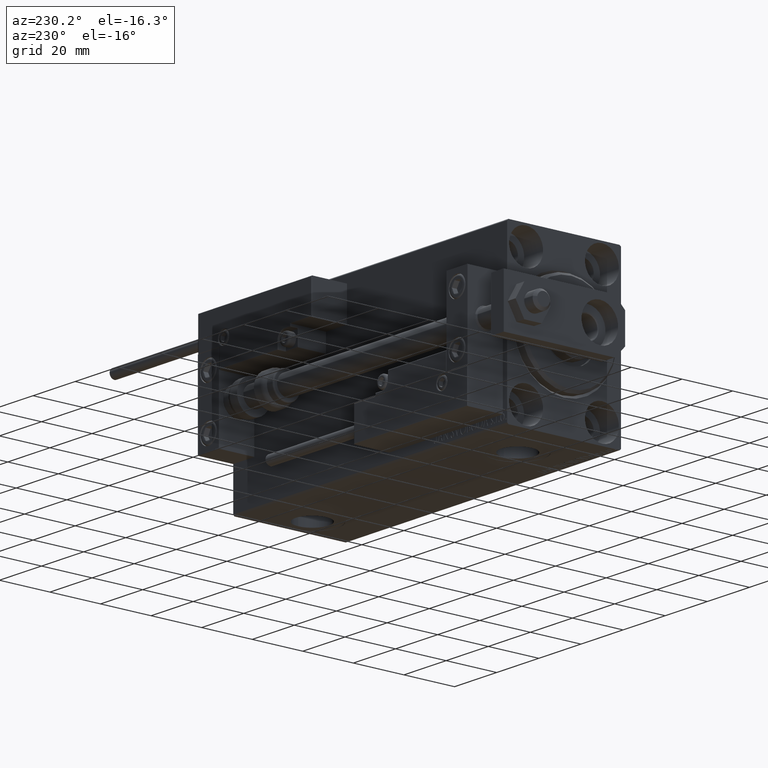
[diagram: clean part render]
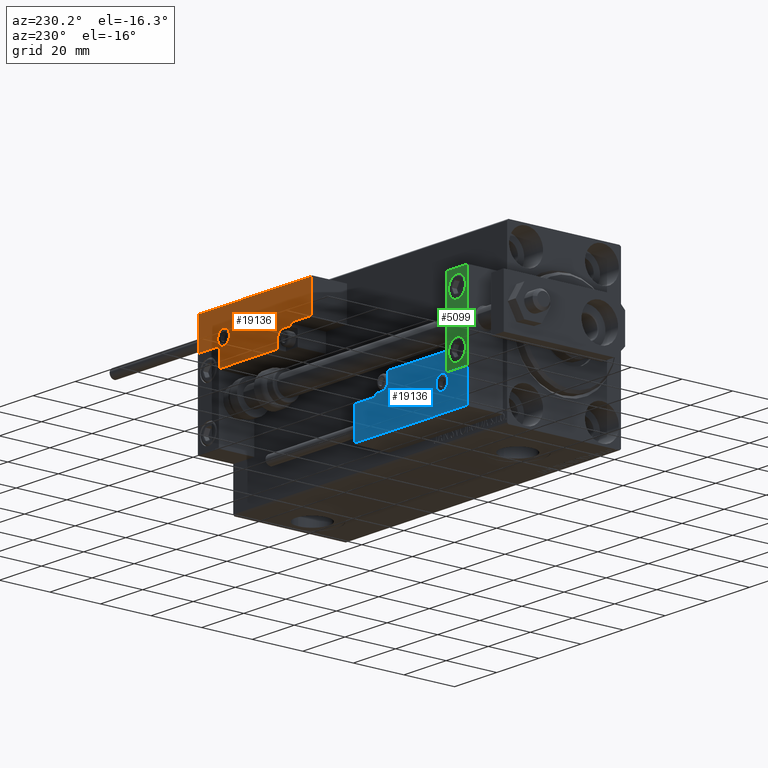
[diagram: same view with three faces highlighted in distinct colors, each labeled with its STEP entity id]
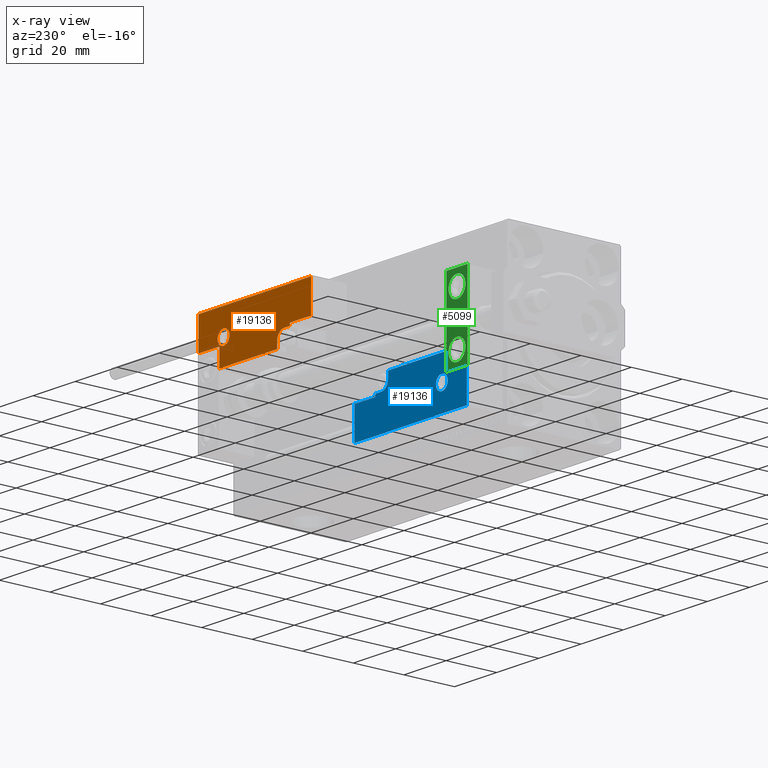
[diagram: x-ray of the same camera — body ghosted, the three highlighted faces saturated]
A machine part, auxiliary view with three faces highlighted in distinct colors.
The next image is the same camera in x-ray (body ghosted, the three faces saturated) — at least one of them is partly hidden behind the body in this view.
Their STEP definitions:

[orange] entity #19136 — the highlighted planar face has unit normal (0, 1, -0).
#374 = ORIENTED_EDGE ( 'NONE', *, *, #3781, .T. ) ;
#768 = DIRECTION ( 'NONE',  ( 1.000000000000000000, -1.734723475976815230E-16, 0.000000000000000000 ) ) ;
#1174 = VECTOR ( 'NONE', #1322, 1000.000000000000000 ) ;
#1322 = DIRECTION ( 'NONE',  ( -1.000000000000000000, 6.424901762877063495E-17, -0.000000000000000000 ) ) ;
#1591 = LINE ( 'NONE', #17380, #13882 ) ;
#2923 = ORIENTED_EDGE ( 'NONE', *, *, #23443, .T. ) ;
#3162 = CARTESIAN_POINT ( 'NONE',  ( 13.99999999999999822, 6.300000000000001599, 14.00000000000000000 ) ) ;
#3373 = VECTOR ( 'NONE', #13943, 1000.000000000000000 ) ;
#3447 = VECTOR ( 'NONE', #768, 1000.000000000000000 ) ;
#3659 = ORIENTED_EDGE ( 'NONE', *, *, #39537, .T. ) ;
#3781 = EDGE_CURVE ( 'NONE', #29993, #34466, #21312, .T. ) ;
#3897 = CARTESIAN_POINT ( 'NONE',  ( 16.69999999999999929, 7.000000000000009770, 14.00000000000000000 ) ) ;
#3934 = DIRECTION ( 'NONE',  ( -0.000000000000000000, 1.000000000000000000, -0.000000000000000000 ) ) ;
#4930 = VECTOR ( 'NONE', #10182, 1000.000000000000000 ) ;
#6455 = EDGE_CURVE ( 'NONE', #34466, #29993, #40797, .T. ) ;
#7992 = CARTESIAN_POINT ( 'NONE',  ( 10.69999999999999929, 3.000000000000003109, 14.00000000000000000 ) ) ;
#8891 = FACE_BOUND ( 'NONE', #49118, .T. ) ;
#9026 = ORIENTED_EDGE ( 'NONE', *, *, #12396, .T. ) ;
#10182 = DIRECTION ( 'NONE',  ( 1.000000000000000000, -0.000000000000000000, 0.000000000000000000 ) ) ;
#10277 = CARTESIAN_POINT ( 'NONE',  ( 27.00000000000006395, 7.300000000000007816, 14.00000000000000000 ) ) ;
#10465 = DIRECTION ( 'NONE',  ( -8.006416042969869188E-16, -1.000000000000000000, 0.000000000000000000 ) ) ;
#12229 = VERTEX_POINT ( 'NONE', #25828 ) ;
#12396 = EDGE_CURVE ( 'NONE', #22596, #15207, #26070, .T. ) ;
#12464 = DIRECTION ( 'NONE',  ( -0.000000000000000000, 0.000000000000000000, 1.000000000000000000 ) ) ;
#12845 = ORIENTED_EDGE ( 'NONE', *, *, #19356, .T. ) ;
#13140 = CARTESIAN_POINT ( 'NONE',  ( -14.79999999999994920, 9.800000000000004263, 14.00000000000000000 ) ) ;
#13681 = ORIENTED_EDGE ( 'NONE', *, *, #44685, .T. ) ;
#13882 = VECTOR ( 'NONE', #10465, 1000.000000000000000 ) ;
#13943 = DIRECTION ( 'NONE',  ( 1.000000000000000000, 5.782411586589357639E-16, -0.000000000000000000 ) ) ;
#14763 = AXIS2_PLACEMENT_3D ( 'NONE', #13140, #32275, #25372 ) ;
#15193 = VERTEX_POINT ( 'NONE', #42234 ) ;
#15207 = VERTEX_POINT ( 'NONE', #49377 ) ;
#15470 = VECTOR ( 'NONE', #19688, 1000.000000000000000 ) ;
#15799 = CARTESIAN_POINT ( 'NONE',  ( 16.69999999999999929, 6.300000000000003375, 14.00000000000000000 ) ) ;
#15878 = ORIENTED_EDGE ( 'NONE', *, *, #32663, .T. ) ;
#16761 = CARTESIAN_POINT ( 'NONE',  ( 26.70000000000006324, 20.00000000000001776, 14.00000000000000000 ) ) ;
#17267 = EDGE_LOOP ( 'NONE', ( #38115, #2923, #13681, #48323, #23907, #12845, #9026, #3659, #15878, #26097, #48736 ) ) ;
#17380 = CARTESIAN_POINT ( 'NONE',  ( -26.69999999999994600, 7.000000000000005329, 14.00000000000000000 ) ) ;
#19136 = ADVANCED_FACE ( 'NONE', ( #8891, #24442 ), #46842, .T. ) ;
#19356 = EDGE_CURVE ( 'NONE', #49369, #22596, #50232, .T. ) ;
#19596 = VECTOR ( 'NONE', #47298, 1000.000000000000000 ) ;
#19688 = DIRECTION ( 'NONE',  ( 9.912705577010318647E-16, 1.000000000000000000, 0.000000000000000000 ) ) ;
#19807 = DIRECTION ( 'NONE',  ( 1.000000000000000000, 0.000000000000000000, 0.000000000000000000 ) ) ;
#20378 = CARTESIAN_POINT ( 'NONE',  ( -11.99999999999994849, 9.800000000000004263, 14.00000000000000000 ) ) ;
#21312 = CIRCLE ( 'NONE', #48137, 2.800000000000000266 ) ;
#21842 = CARTESIAN_POINT ( 'NONE',  ( 17.00000000000000000, 6.300000000000003375, 14.00000000000000000 ) ) ;
#21851 = VERTEX_POINT ( 'NONE', #33378 ) ;
#22596 = VERTEX_POINT ( 'NONE', #29799 ) ;
#22839 = CIRCLE ( 'NONE', #41521, 3.299999999999997158 ) ;
#23128 = DIRECTION ( 'NONE',  ( 0.000000000000000000, -0.000000000000000000, -1.000000000000000000 ) ) ;
#23432 = CARTESIAN_POINT ( 'NONE',  ( 0.000000000000000000, 0.000000000000000000, 14.00000000000000000 ) ) ;
#23443 = EDGE_CURVE ( 'NONE', #37495, #37778, #45068, .T. ) ;
#23907 = ORIENTED_EDGE ( 'NONE', *, *, #25794, .T. ) ;
#23946 = LINE ( 'NONE', #35648, #3447 ) ;
#24442 = FACE_OUTER_BOUND ( 'NONE', #17267, .T. ) ;
#24650 = VERTEX_POINT ( 'NONE', #40210 ) ;
#25372 = DIRECTION ( 'NONE',  ( 1.000000000000000000, 0.000000000000000000, 0.000000000000000000 ) ) ;
#25794 = EDGE_CURVE ( 'NONE', #30175, #49369, #29251, .T. ) ;
#25828 = CARTESIAN_POINT ( 'NONE',  ( -26.69999999999994600, 7.300000000000005151, 14.00000000000000000 ) ) ;
#26070 = LINE ( 'NONE', #10277, #50220 ) ;
#26097 = ORIENTED_EDGE ( 'NONE', *, *, #38257, .T. ) ;
#26174 = DIRECTION ( 'NONE',  ( 1.000000000000000000, 0.000000000000000000, 0.000000000000000000 ) ) ;
#27779 = EDGE_CURVE ( 'NONE', #12229, #45019, #23946, .T. ) ;
#28033 = DIRECTION ( 'NONE',  ( 1.000000000000000000, 0.000000000000000000, 0.000000000000000000 ) ) ;
#29251 = LINE ( 'NONE', #21842, #3373 ) ;
#29799 = CARTESIAN_POINT ( 'NONE',  ( 16.69999999999999929, 7.300000000000009592, 14.00000000000000000 ) ) ;
#29993 = VERTEX_POINT ( 'NONE', #45751 ) ;
#30175 = VERTEX_POINT ( 'NONE', #3162 ) ;
#31279 = CARTESIAN_POINT ( 'NONE',  ( 13.99999999999999822, 3.000000000000002665, 14.00000000000000000 ) ) ;
#32275 = DIRECTION ( 'NONE',  ( 0.000000000000000000, -0.000000000000000000, -1.000000000000000000 ) ) ;
#32415 = EDGE_CURVE ( 'NONE', #45019, #37495, #41638, .T. ) ;
#32663 = EDGE_CURVE ( 'NONE', #24650, #21851, #33940, .T. ) ;
#33378 = CARTESIAN_POINT ( 'NONE',  ( -26.69999999999993534, 19.70000000000002061, 14.00000000000000000 ) ) ;
#33711 = CARTESIAN_POINT ( 'NONE',  ( -16.69999999999999218, 7.300000000000003375, 14.00000000000000000 ) ) ;
#33822 = CARTESIAN_POINT ( 'NONE',  ( -14.79999999999994920, 9.800000000000004263, 14.00000000000000000 ) ) ;
#33940 = LINE ( 'NONE', #49455, #1174 ) ;
#34466 = VERTEX_POINT ( 'NONE', #20378 ) ;
#35278 = CARTESIAN_POINT ( 'NONE',  ( 10.69999999999999929, 0.3000000000000032085, 14.00000000000000000 ) ) ;
#35648 = CARTESIAN_POINT ( 'NONE',  ( -16.99999999999999289, 7.300000000000003375, 14.00000000000000000 ) ) ;
#35810 = AXIS2_PLACEMENT_3D ( 'NONE', #23432, #12464, #28033 ) ;
#36108 = LINE ( 'NONE', #16761, #19596 ) ;
#37132 = DIRECTION ( 'NONE',  ( 0.000000000000000000, -0.000000000000000000, -1.000000000000000000 ) ) ;
#37495 = VERTEX_POINT ( 'NONE', #37898 ) ;
#37525 = EDGE_CURVE ( 'NONE', #15193, #30175, #22839, .T. ) ;
#37558 = DIRECTION ( 'NONE',  ( 0.000000000000000000, -1.000000000000000000, 0.000000000000000000 ) ) ;
#37778 = VERTEX_POINT ( 'NONE', #35278 ) ;
#37898 = CARTESIAN_POINT ( 'NONE',  ( -16.69999999999999218, 0.3000000000000032085, 14.00000000000000000 ) ) ;
#38115 = ORIENTED_EDGE ( 'NONE', *, *, #32415, .T. ) ;
#38257 = EDGE_CURVE ( 'NONE', #21851, #12229, #1591, .T. ) ;
#39537 = EDGE_CURVE ( 'NONE', #15207, #24650, #36108, .T. ) ;
#40210 = CARTESIAN_POINT ( 'NONE',  ( 26.70000000000006324, 19.70000000000001705, 14.00000000000000000 ) ) ;
#40797 = CIRCLE ( 'NONE', #14763, 2.800000000000000266 ) ;
#41521 = AXIS2_PLACEMENT_3D ( 'NONE', #31279, #23128, #19807 ) ;
#41599 = DIRECTION ( 'NONE',  ( 1.000000000000000000, -1.734723475976796001E-16, 0.000000000000000000 ) ) ;
#41638 = LINE ( 'NONE', #45203, #45907 ) ;
#42234 = CARTESIAN_POINT ( 'NONE',  ( 10.69999999999999929, 3.000000000000003109, 14.00000000000000000 ) ) ;
#42644 = LINE ( 'NONE', #7992, #45008 ) ;
#44558 = CARTESIAN_POINT ( 'NONE',  ( 11.00000000000000000, 0.3000000000000032085, 14.00000000000000000 ) ) ;
#44685 = EDGE_CURVE ( 'NONE', #37778, #15193, #42644, .T. ) ;
#45008 = VECTOR ( 'NONE', #3934, 1000.000000000000000 ) ;
#45019 = VERTEX_POINT ( 'NONE', #33711 ) ;
#45068 = LINE ( 'NONE', #44558, #4930 ) ;
#45203 = CARTESIAN_POINT ( 'NONE',  ( -16.69999999999999218, 3.252606517456513302E-15, 14.00000000000000000 ) ) ;
#45751 = CARTESIAN_POINT ( 'NONE',  ( -17.59999999999994813, 9.800000000000004263, 14.00000000000000000 ) ) ;
#45907 = VECTOR ( 'NONE', #37558, 1000.000000000000000 ) ;
#46842 = PLANE ( 'NONE',  #35810 ) ;
#47022 = ORIENTED_EDGE ( 'NONE', *, *, #6455, .T. ) ;
#47298 = DIRECTION ( 'NONE',  ( 0.000000000000000000, 1.000000000000000000, -0.000000000000000000 ) ) ;
#48137 = AXIS2_PLACEMENT_3D ( 'NONE', #33822, #37132, #26174 ) ;
#48323 = ORIENTED_EDGE ( 'NONE', *, *, #37525, .T. ) ;
#48736 = ORIENTED_EDGE ( 'NONE', *, *, #27779, .T. ) ;
#49118 = EDGE_LOOP ( 'NONE', ( #47022, #374 ) ) ;
#49369 = VERTEX_POINT ( 'NONE', #15799 ) ;
#49377 = CARTESIAN_POINT ( 'NONE',  ( 26.70000000000006324, 7.300000000000007816, 14.00000000000000000 ) ) ;
#49455 = CARTESIAN_POINT ( 'NONE',  ( -26.99999999999993605, 19.70000000000002061, 14.00000000000000000 ) ) ;
#50220 = VECTOR ( 'NONE', #41599, 1000.000000000000000 ) ;
#50232 = LINE ( 'NONE', #3897, #15470 ) ;

[blue] entity #19136 — the highlighted planar face has unit normal (-0, 1, -0).
#374 = ORIENTED_EDGE ( 'NONE', *, *, #3781, .T. ) ;
#768 = DIRECTION ( 'NONE',  ( 1.000000000000000000, -1.734723475976815230E-16, 0.000000000000000000 ) ) ;
#1174 = VECTOR ( 'NONE', #1322, 1000.000000000000000 ) ;
#1322 = DIRECTION ( 'NONE',  ( -1.000000000000000000, 6.424901762877063495E-17, -0.000000000000000000 ) ) ;
#1591 = LINE ( 'NONE', #17380, #13882 ) ;
#2923 = ORIENTED_EDGE ( 'NONE', *, *, #23443, .T. ) ;
#3162 = CARTESIAN_POINT ( 'NONE',  ( 13.99999999999999822, 6.300000000000001599, 14.00000000000000000 ) ) ;
#3373 = VECTOR ( 'NONE', #13943, 1000.000000000000000 ) ;
#3447 = VECTOR ( 'NONE', #768, 1000.000000000000000 ) ;
#3659 = ORIENTED_EDGE ( 'NONE', *, *, #39537, .T. ) ;
#3781 = EDGE_CURVE ( 'NONE', #29993, #34466, #21312, .T. ) ;
#3897 = CARTESIAN_POINT ( 'NONE',  ( 16.69999999999999929, 7.000000000000009770, 14.00000000000000000 ) ) ;
#3934 = DIRECTION ( 'NONE',  ( -0.000000000000000000, 1.000000000000000000, -0.000000000000000000 ) ) ;
#4930 = VECTOR ( 'NONE', #10182, 1000.000000000000000 ) ;
#6455 = EDGE_CURVE ( 'NONE', #34466, #29993, #40797, .T. ) ;
#7992 = CARTESIAN_POINT ( 'NONE',  ( 10.69999999999999929, 3.000000000000003109, 14.00000000000000000 ) ) ;
#8891 = FACE_BOUND ( 'NONE', #49118, .T. ) ;
#9026 = ORIENTED_EDGE ( 'NONE', *, *, #12396, .T. ) ;
#10182 = DIRECTION ( 'NONE',  ( 1.000000000000000000, -0.000000000000000000, 0.000000000000000000 ) ) ;
#10277 = CARTESIAN_POINT ( 'NONE',  ( 27.00000000000006395, 7.300000000000007816, 14.00000000000000000 ) ) ;
#10465 = DIRECTION ( 'NONE',  ( -8.006416042969869188E-16, -1.000000000000000000, 0.000000000000000000 ) ) ;
#12229 = VERTEX_POINT ( 'NONE', #25828 ) ;
#12396 = EDGE_CURVE ( 'NONE', #22596, #15207, #26070, .T. ) ;
#12464 = DIRECTION ( 'NONE',  ( -0.000000000000000000, 0.000000000000000000, 1.000000000000000000 ) ) ;
#12845 = ORIENTED_EDGE ( 'NONE', *, *, #19356, .T. ) ;
#13140 = CARTESIAN_POINT ( 'NONE',  ( -14.79999999999994920, 9.800000000000004263, 14.00000000000000000 ) ) ;
#13681 = ORIENTED_EDGE ( 'NONE', *, *, #44685, .T. ) ;
#13882 = VECTOR ( 'NONE', #10465, 1000.000000000000000 ) ;
#13943 = DIRECTION ( 'NONE',  ( 1.000000000000000000, 5.782411586589357639E-16, -0.000000000000000000 ) ) ;
#14763 = AXIS2_PLACEMENT_3D ( 'NONE', #13140, #32275, #25372 ) ;
#15193 = VERTEX_POINT ( 'NONE', #42234 ) ;
#15207 = VERTEX_POINT ( 'NONE', #49377 ) ;
#15470 = VECTOR ( 'NONE', #19688, 1000.000000000000000 ) ;
#15799 = CARTESIAN_POINT ( 'NONE',  ( 16.69999999999999929, 6.300000000000003375, 14.00000000000000000 ) ) ;
#15878 = ORIENTED_EDGE ( 'NONE', *, *, #32663, .T. ) ;
#16761 = CARTESIAN_POINT ( 'NONE',  ( 26.70000000000006324, 20.00000000000001776, 14.00000000000000000 ) ) ;
#17267 = EDGE_LOOP ( 'NONE', ( #38115, #2923, #13681, #48323, #23907, #12845, #9026, #3659, #15878, #26097, #48736 ) ) ;
#17380 = CARTESIAN_POINT ( 'NONE',  ( -26.69999999999994600, 7.000000000000005329, 14.00000000000000000 ) ) ;
#19136 = ADVANCED_FACE ( 'NONE', ( #8891, #24442 ), #46842, .T. ) ;
#19356 = EDGE_CURVE ( 'NONE', #49369, #22596, #50232, .T. ) ;
#19596 = VECTOR ( 'NONE', #47298, 1000.000000000000000 ) ;
#19688 = DIRECTION ( 'NONE',  ( 9.912705577010318647E-16, 1.000000000000000000, 0.000000000000000000 ) ) ;
#19807 = DIRECTION ( 'NONE',  ( 1.000000000000000000, 0.000000000000000000, 0.000000000000000000 ) ) ;
#20378 = CARTESIAN_POINT ( 'NONE',  ( -11.99999999999994849, 9.800000000000004263, 14.00000000000000000 ) ) ;
#21312 = CIRCLE ( 'NONE', #48137, 2.800000000000000266 ) ;
#21842 = CARTESIAN_POINT ( 'NONE',  ( 17.00000000000000000, 6.300000000000003375, 14.00000000000000000 ) ) ;
#21851 = VERTEX_POINT ( 'NONE', #33378 ) ;
#22596 = VERTEX_POINT ( 'NONE', #29799 ) ;
#22839 = CIRCLE ( 'NONE', #41521, 3.299999999999997158 ) ;
#23128 = DIRECTION ( 'NONE',  ( 0.000000000000000000, -0.000000000000000000, -1.000000000000000000 ) ) ;
#23432 = CARTESIAN_POINT ( 'NONE',  ( 0.000000000000000000, 0.000000000000000000, 14.00000000000000000 ) ) ;
#23443 = EDGE_CURVE ( 'NONE', #37495, #37778, #45068, .T. ) ;
#23907 = ORIENTED_EDGE ( 'NONE', *, *, #25794, .T. ) ;
#23946 = LINE ( 'NONE', #35648, #3447 ) ;
#24442 = FACE_OUTER_BOUND ( 'NONE', #17267, .T. ) ;
#24650 = VERTEX_POINT ( 'NONE', #40210 ) ;
#25372 = DIRECTION ( 'NONE',  ( 1.000000000000000000, 0.000000000000000000, 0.000000000000000000 ) ) ;
#25794 = EDGE_CURVE ( 'NONE', #30175, #49369, #29251, .T. ) ;
#25828 = CARTESIAN_POINT ( 'NONE',  ( -26.69999999999994600, 7.300000000000005151, 14.00000000000000000 ) ) ;
#26070 = LINE ( 'NONE', #10277, #50220 ) ;
#26097 = ORIENTED_EDGE ( 'NONE', *, *, #38257, .T. ) ;
#26174 = DIRECTION ( 'NONE',  ( 1.000000000000000000, 0.000000000000000000, 0.000000000000000000 ) ) ;
#27779 = EDGE_CURVE ( 'NONE', #12229, #45019, #23946, .T. ) ;
#28033 = DIRECTION ( 'NONE',  ( 1.000000000000000000, 0.000000000000000000, 0.000000000000000000 ) ) ;
#29251 = LINE ( 'NONE', #21842, #3373 ) ;
#29799 = CARTESIAN_POINT ( 'NONE',  ( 16.69999999999999929, 7.300000000000009592, 14.00000000000000000 ) ) ;
#29993 = VERTEX_POINT ( 'NONE', #45751 ) ;
#30175 = VERTEX_POINT ( 'NONE', #3162 ) ;
#31279 = CARTESIAN_POINT ( 'NONE',  ( 13.99999999999999822, 3.000000000000002665, 14.00000000000000000 ) ) ;
#32275 = DIRECTION ( 'NONE',  ( 0.000000000000000000, -0.000000000000000000, -1.000000000000000000 ) ) ;
#32415 = EDGE_CURVE ( 'NONE', #45019, #37495, #41638, .T. ) ;
#32663 = EDGE_CURVE ( 'NONE', #24650, #21851, #33940, .T. ) ;
#33378 = CARTESIAN_POINT ( 'NONE',  ( -26.69999999999993534, 19.70000000000002061, 14.00000000000000000 ) ) ;
#33711 = CARTESIAN_POINT ( 'NONE',  ( -16.69999999999999218, 7.300000000000003375, 14.00000000000000000 ) ) ;
#33822 = CARTESIAN_POINT ( 'NONE',  ( -14.79999999999994920, 9.800000000000004263, 14.00000000000000000 ) ) ;
#33940 = LINE ( 'NONE', #49455, #1174 ) ;
#34466 = VERTEX_POINT ( 'NONE', #20378 ) ;
#35278 = CARTESIAN_POINT ( 'NONE',  ( 10.69999999999999929, 0.3000000000000032085, 14.00000000000000000 ) ) ;
#35648 = CARTESIAN_POINT ( 'NONE',  ( -16.99999999999999289, 7.300000000000003375, 14.00000000000000000 ) ) ;
#35810 = AXIS2_PLACEMENT_3D ( 'NONE', #23432, #12464, #28033 ) ;
#36108 = LINE ( 'NONE', #16761, #19596 ) ;
#37132 = DIRECTION ( 'NONE',  ( 0.000000000000000000, -0.000000000000000000, -1.000000000000000000 ) ) ;
#37495 = VERTEX_POINT ( 'NONE', #37898 ) ;
#37525 = EDGE_CURVE ( 'NONE', #15193, #30175, #22839, .T. ) ;
#37558 = DIRECTION ( 'NONE',  ( 0.000000000000000000, -1.000000000000000000, 0.000000000000000000 ) ) ;
#37778 = VERTEX_POINT ( 'NONE', #35278 ) ;
#37898 = CARTESIAN_POINT ( 'NONE',  ( -16.69999999999999218, 0.3000000000000032085, 14.00000000000000000 ) ) ;
#38115 = ORIENTED_EDGE ( 'NONE', *, *, #32415, .T. ) ;
#38257 = EDGE_CURVE ( 'NONE', #21851, #12229, #1591, .T. ) ;
#39537 = EDGE_CURVE ( 'NONE', #15207, #24650, #36108, .T. ) ;
#40210 = CARTESIAN_POINT ( 'NONE',  ( 26.70000000000006324, 19.70000000000001705, 14.00000000000000000 ) ) ;
#40797 = CIRCLE ( 'NONE', #14763, 2.800000000000000266 ) ;
#41521 = AXIS2_PLACEMENT_3D ( 'NONE', #31279, #23128, #19807 ) ;
#41599 = DIRECTION ( 'NONE',  ( 1.000000000000000000, -1.734723475976796001E-16, 0.000000000000000000 ) ) ;
#41638 = LINE ( 'NONE', #45203, #45907 ) ;
#42234 = CARTESIAN_POINT ( 'NONE',  ( 10.69999999999999929, 3.000000000000003109, 14.00000000000000000 ) ) ;
#42644 = LINE ( 'NONE', #7992, #45008 ) ;
#44558 = CARTESIAN_POINT ( 'NONE',  ( 11.00000000000000000, 0.3000000000000032085, 14.00000000000000000 ) ) ;
#44685 = EDGE_CURVE ( 'NONE', #37778, #15193, #42644, .T. ) ;
#45008 = VECTOR ( 'NONE', #3934, 1000.000000000000000 ) ;
#45019 = VERTEX_POINT ( 'NONE', #33711 ) ;
#45068 = LINE ( 'NONE', #44558, #4930 ) ;
#45203 = CARTESIAN_POINT ( 'NONE',  ( -16.69999999999999218, 3.252606517456513302E-15, 14.00000000000000000 ) ) ;
#45751 = CARTESIAN_POINT ( 'NONE',  ( -17.59999999999994813, 9.800000000000004263, 14.00000000000000000 ) ) ;
#45907 = VECTOR ( 'NONE', #37558, 1000.000000000000000 ) ;
#46842 = PLANE ( 'NONE',  #35810 ) ;
#47022 = ORIENTED_EDGE ( 'NONE', *, *, #6455, .T. ) ;
#47298 = DIRECTION ( 'NONE',  ( 0.000000000000000000, 1.000000000000000000, -0.000000000000000000 ) ) ;
#48137 = AXIS2_PLACEMENT_3D ( 'NONE', #33822, #37132, #26174 ) ;
#48323 = ORIENTED_EDGE ( 'NONE', *, *, #37525, .T. ) ;
#48736 = ORIENTED_EDGE ( 'NONE', *, *, #27779, .T. ) ;
#49118 = EDGE_LOOP ( 'NONE', ( #47022, #374 ) ) ;
#49369 = VERTEX_POINT ( 'NONE', #15799 ) ;
#49377 = CARTESIAN_POINT ( 'NONE',  ( 26.70000000000006324, 7.300000000000007816, 14.00000000000000000 ) ) ;
#49455 = CARTESIAN_POINT ( 'NONE',  ( -26.99999999999993605, 19.70000000000002061, 14.00000000000000000 ) ) ;
#50220 = VECTOR ( 'NONE', #41599, 1000.000000000000000 ) ;
#50232 = LINE ( 'NONE', #3897, #15470 ) ;

[green] entity #5099 — the highlighted planar face has unit normal (-0, 1, -0).
#144 = VECTOR ( 'NONE', #38175, 1000.000000000000000 ) ;
#1771 = CIRCLE ( 'NONE', #49726, 4.000000000000000000 ) ;
#3102 = ORIENTED_EDGE ( 'NONE', *, *, #31524, .F. ) ;
#3467 = DIRECTION ( 'NONE',  ( 0.000000000000000000, 0.000000000000000000, 1.000000000000000000 ) ) ;
#4280 = VECTOR ( 'NONE', #12908, 1000.000000000000000 ) ;
#4915 = EDGE_LOOP ( 'NONE', ( #33033, #32862 ) ) ;
#5099 = ADVANCED_FACE ( 'NONE', ( #9574, #17733, #45220 ), #41154, .T. ) ;
#5431 = VERTEX_POINT ( 'NONE', #18300 ) ;
#5445 = DIRECTION ( 'NONE',  ( 0.000000000000000000, 0.000000000000000000, 1.000000000000000000 ) ) ;
#6555 = AXIS2_PLACEMENT_3D ( 'NONE', #7041, #9050, #35556 ) ;
#6855 = EDGE_CURVE ( 'NONE', #20306, #24396, #1771, .T. ) ;
#7041 = CARTESIAN_POINT ( 'NONE',  ( 5.000000000000000888, 7.000000000000000888, 10.00000000000000178 ) ) ;
#8736 = CARTESIAN_POINT ( 'NONE',  ( 5.000000000000000888, 6.999999999999999112, -6.000000000000000888 ) ) ;
#8742 = EDGE_LOOP ( 'NONE', ( #26426, #49310 ) ) ;
#8760 = DIRECTION ( 'NONE',  ( 1.848892746611746419E-32, -1.000000000000000000, 6.616381192988677562E-17 ) ) ;
#9050 = DIRECTION ( 'NONE',  ( 1.848892746611746419E-32, -1.000000000000000000, 6.616381192988677562E-17 ) ) ;
#9499 = EDGE_LOOP ( 'NONE', ( #3102, #24671, #14326, #32124 ) ) ;
#9574 = FACE_OUTER_BOUND ( 'NONE', #9499, .T. ) ;
#10589 = CIRCLE ( 'NONE', #6555, 4.000000000000000000 ) ;
#12908 = DIRECTION ( 'NONE',  ( 0.000000000000000000, 0.000000000000000000, -1.000000000000000000 ) ) ;
#13370 = CARTESIAN_POINT ( 'NONE',  ( 0.000000000000000000, 7.000000000000000000, 15.99999999999999289 ) ) ;
#13764 = CIRCLE ( 'NONE', #44782, 4.000000000000000888 ) ;
#13807 = VERTEX_POINT ( 'NONE', #27082 ) ;
#13914 = CARTESIAN_POINT ( 'NONE',  ( 10.00000000000000000, 7.000000000000000000, -16.00000000000000711 ) ) ;
#14126 = VERTEX_POINT ( 'NONE', #17383 ) ;
#14154 = CARTESIAN_POINT ( 'NONE',  ( 10.00000000000000000, 7.000000000000000000, 15.99999999999999289 ) ) ;
#14326 = ORIENTED_EDGE ( 'NONE', *, *, #46773, .T. ) ;
#14502 = AXIS2_PLACEMENT_3D ( 'NONE', #33795, #38100, #3467 ) ;
#14574 = EDGE_CURVE ( 'NONE', #16011, #14126, #24291, .T. ) ;
#16011 = VERTEX_POINT ( 'NONE', #8736 ) ;
#16416 = CARTESIAN_POINT ( 'NONE',  ( 5.000000000000000888, 7.000000000000000888, 10.00000000000000178 ) ) ;
#16584 = VECTOR ( 'NONE', #25601, 1000.000000000000000 ) ;
#17383 = CARTESIAN_POINT ( 'NONE',  ( 5.000000000000001776, 6.999999999999999112, -14.00000000000000178 ) ) ;
#17733 = FACE_BOUND ( 'NONE', #8742, .T. ) ;
#18210 = CARTESIAN_POINT ( 'NONE',  ( 5.000000000000001776, 7.000000000000000888, 6.000000000000000888 ) ) ;
#18300 = CARTESIAN_POINT ( 'NONE',  ( 0.000000000000000000, 7.000000000000000000, -16.00000000000000711 ) ) ;
#20306 = VERTEX_POINT ( 'NONE', #18210 ) ;
#20344 = EDGE_CURVE ( 'NONE', #14126, #16011, #13764, .T. ) ;
#22628 = CARTESIAN_POINT ( 'NONE',  ( 10.00000000000000000, 7.000000000000000000, -16.00000000000000711 ) ) ;
#23022 = CARTESIAN_POINT ( 'NONE',  ( 5.000000000000000888, 6.999999999999999112, -10.00000000000000178 ) ) ;
#23984 = EDGE_CURVE ( 'NONE', #24396, #20306, #10589, .T. ) ;
#24291 = CIRCLE ( 'NONE', #14502, 4.000000000000000888 ) ;
#24396 = VERTEX_POINT ( 'NONE', #31434 ) ;
#24671 = ORIENTED_EDGE ( 'NONE', *, *, #25639, .F. ) ;
#25126 = DIRECTION ( 'NONE',  ( -0.000000000000000000, 1.000000000000000000, 0.000000000000000000 ) ) ;
#25601 = DIRECTION ( 'NONE',  ( 0.000000000000000000, 0.000000000000000000, -1.000000000000000000 ) ) ;
#25639 = EDGE_CURVE ( 'NONE', #13807, #49326, #31052, .T. ) ;
#26426 = ORIENTED_EDGE ( 'NONE', *, *, #14574, .F. ) ;
#26604 = DIRECTION ( 'NONE',  ( 0.000000000000000000, 0.000000000000000000, 1.000000000000000000 ) ) ;
#27082 = CARTESIAN_POINT ( 'NONE',  ( 10.00000000000000000, 7.000000000000000000, 15.99999999999999289 ) ) ;
#27494 = CARTESIAN_POINT ( 'NONE',  ( 10.00000000000000000, 7.000000000000000000, 15.99999999999999289 ) ) ;
#27979 = LINE ( 'NONE', #32288, #4280 ) ;
#28418 = EDGE_CURVE ( 'NONE', #28749, #5431, #38408, .T. ) ;
#28749 = VERTEX_POINT ( 'NONE', #13914 ) ;
#31052 = LINE ( 'NONE', #27494, #144 ) ;
#31434 = CARTESIAN_POINT ( 'NONE',  ( 5.000000000000000888, 7.000000000000000888, 14.00000000000000178 ) ) ;
#31524 = EDGE_CURVE ( 'NONE', #49326, #5431, #49014, .T. ) ;
#32124 = ORIENTED_EDGE ( 'NONE', *, *, #28418, .T. ) ;
#32288 = CARTESIAN_POINT ( 'NONE',  ( 10.00000000000000000, 7.000000000000000000, 15.99999999999999289 ) ) ;
#32862 = ORIENTED_EDGE ( 'NONE', *, *, #6855, .T. ) ;
#33033 = ORIENTED_EDGE ( 'NONE', *, *, #23984, .T. ) ;
#33577 = AXIS2_PLACEMENT_3D ( 'NONE', #14154, #25126, #44710 ) ;
#33795 = CARTESIAN_POINT ( 'NONE',  ( 5.000000000000000888, 6.999999999999999112, -10.00000000000000178 ) ) ;
#35556 = DIRECTION ( 'NONE',  ( 0.000000000000000000, 0.000000000000000000, 1.000000000000000000 ) ) ;
#38100 = DIRECTION ( 'NONE',  ( 0.000000000000000000, 1.000000000000000000, -6.065466699219605527E-17 ) ) ;
#38156 = DIRECTION ( 'NONE',  ( -1.000000000000000000, -0.000000000000000000, -0.000000000000000000 ) ) ;
#38175 = DIRECTION ( 'NONE',  ( -1.000000000000000000, -0.000000000000000000, -0.000000000000000000 ) ) ;
#38408 = LINE ( 'NONE', #22628, #44116 ) ;
#41154 = PLANE ( 'NONE',  #33577 ) ;
#44116 = VECTOR ( 'NONE', #38156, 1000.000000000000000 ) ;
#44710 = DIRECTION ( 'NONE',  ( 0.000000000000000000, -0.000000000000000000, 1.000000000000000000 ) ) ;
#44782 = AXIS2_PLACEMENT_3D ( 'NONE', #23022, #50002, #26604 ) ;
#45220 = FACE_BOUND ( 'NONE', #4915, .T. ) ;
#46773 = EDGE_CURVE ( 'NONE', #13807, #28749, #27979, .T. ) ;
#47352 = CARTESIAN_POINT ( 'NONE',  ( 0.000000000000000000, 7.000000000000000000, 15.99999999999999289 ) ) ;
#49014 = LINE ( 'NONE', #13370, #16584 ) ;
#49310 = ORIENTED_EDGE ( 'NONE', *, *, #20344, .F. ) ;
#49326 = VERTEX_POINT ( 'NONE', #47352 ) ;
#49726 = AXIS2_PLACEMENT_3D ( 'NONE', #16416, #8760, #5445 ) ;
#50002 = DIRECTION ( 'NONE',  ( 0.000000000000000000, 1.000000000000000000, -6.065466699219605527E-17 ) ) ;